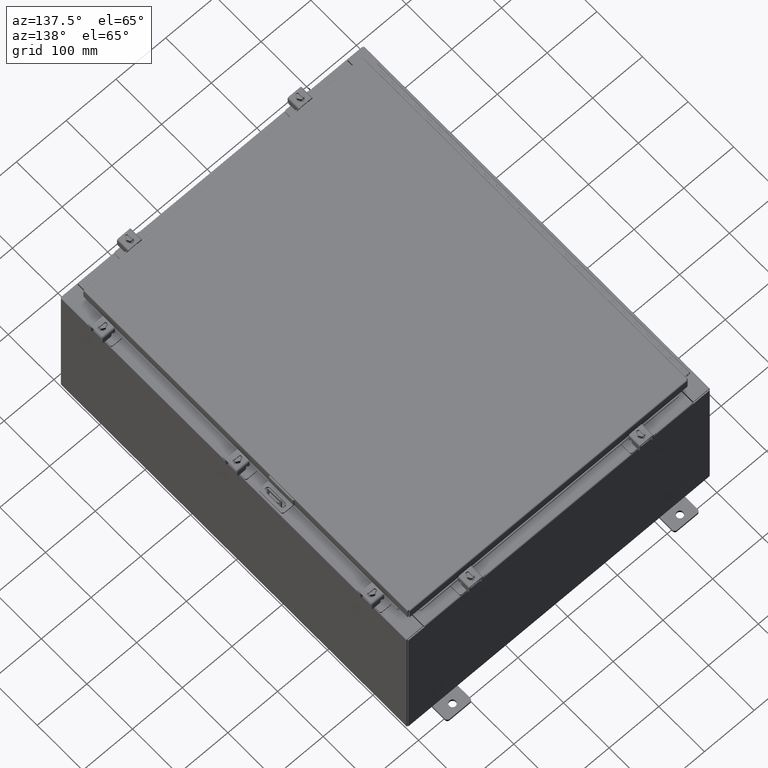
[diagram: clean part render]
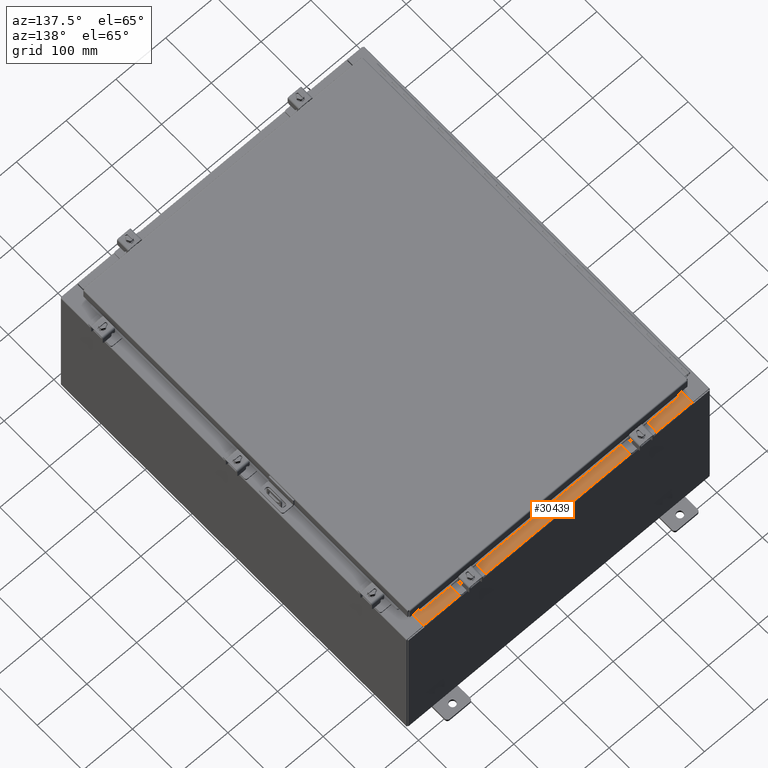
[diagram: same view with one face highlighted and labeled with its STEP entity id]
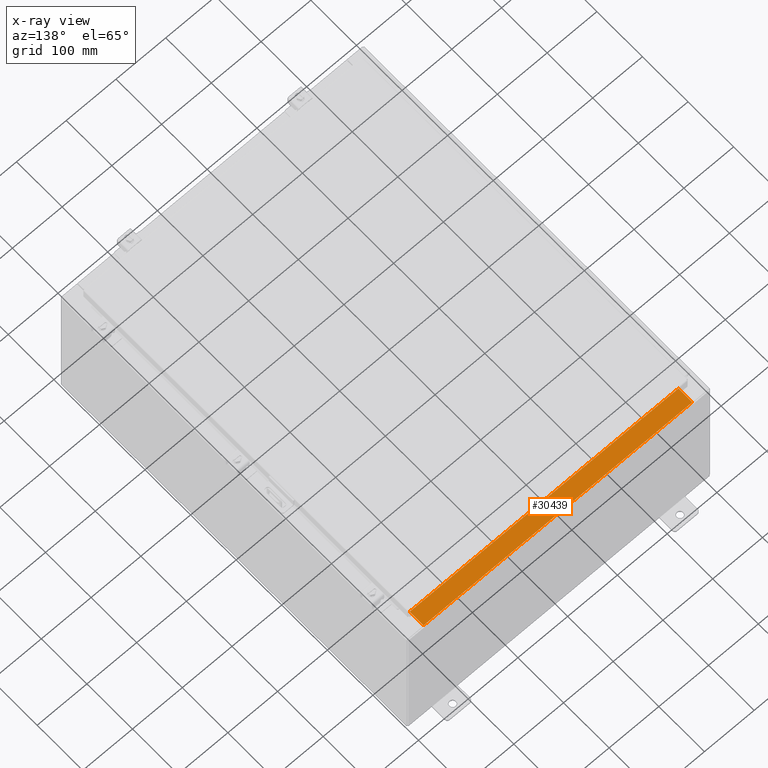
[diagram: x-ray of the same camera — body ghosted, the highlighted face saturated]
A machine part, auxiliary view. The second image highlights one B-rep face of the part: STEP entity #30439.
The next image is the same camera in x-ray: the body ghosted, the highlighted face saturated — about 0% of this face is hidden behind the body in this view.
In plain terms, the highlighted planar face has unit normal (0, 0, 1).
Its self-contained STEP definition (entity closure, byte-faithful):
#142 = DIRECTION ( 'NONE',  ( -1.000000000000000000, 0.0000000000000000000, 0.0000000000000000000 ) ) ;
#660 = VERTEX_POINT ( 'NONE', #7476 ) ;
#1501 = CARTESIAN_POINT ( 'NONE',  ( -10.63720000000000200, -1.287299999999998100, 6.000000000000004400 ) ) ;
#2535 = DIRECTION ( 'NONE',  ( 0.0000000000000000000, -1.000000000000000000, 2.674785894579892700E-015 ) ) ;
#2818 = FACE_OUTER_BOUND ( 'NONE', #27077, .T. ) ;
#3056 = LINE ( 'NONE', #20499, #32830 ) ;
#3272 = VERTEX_POINT ( 'NONE', #23281 ) ;
#3763 = ORIENTED_EDGE ( 'NONE', *, *, #10616, .F. ) ;
#6509 = ORIENTED_EDGE ( 'NONE', *, *, #33726, .F. ) ;
#7476 = CARTESIAN_POINT ( 'NONE',  ( 10.63720000000000400, -0.08770000000000002800, 6.000000000000001800 ) ) ;
#7951 = CARTESIAN_POINT ( 'NONE',  ( -3.422455537835030400E-018, -0.08770000000000026400, 6.000000000000001800 ) ) ;
#8700 = CARTESIAN_POINT ( 'NONE',  ( -10.63720000000000200, -0.08770000000000026400, 6.000000000000001800 ) ) ;
#10616 = EDGE_CURVE ( 'NONE', #24750, #13215, #35111, .T. ) ;
#11148 = AXIS2_PLACEMENT_3D ( 'NONE', #17035, #19905, #2535 ) ;
#11668 = CARTESIAN_POINT ( 'NONE',  ( -10.63720000000000200, -0.07469999999999973900, 6.000000000000001800 ) ) ;
#11719 = DIRECTION ( 'NONE',  ( -0.0000000000000000000, 1.000000000000000000, -2.674785894579892700E-015 ) ) ;
#13215 = VERTEX_POINT ( 'NONE', #8700 ) ;
#15231 = CARTESIAN_POINT ( 'NONE',  ( 10.63720000000000200, -1.300299999999999800, 6.000000000000006200 ) ) ;
#16814 = LINE ( 'NONE', #7951, #25306 ) ;
#17035 = CARTESIAN_POINT ( 'NONE',  ( -3.422455537835030400E-018, 1.610972251716582100E-014, 6.000000000000001800 ) ) ;
#18108 = DIRECTION ( 'NONE',  ( -0.0000000000000000000, -1.000000000000000000, 3.566381192773190000E-015 ) ) ;
#18957 = VECTOR ( 'NONE', #11719, 39.37007874015748100 ) ;
#19905 = DIRECTION ( 'NONE',  ( 0.0000000000000000000, 2.674785894579892700E-015, 1.000000000000000000 ) ) ;
#20499 = CARTESIAN_POINT ( 'NONE',  ( 10.63720000000000400, -1.287299999999998800, 6.000000000000003600 ) ) ;
#23281 = CARTESIAN_POINT ( 'NONE',  ( 10.63720000000000200, -1.287299999999998800, 6.000000000000006200 ) ) ;
#24750 = VERTEX_POINT ( 'NONE', #1501 ) ;
#25306 = VECTOR ( 'NONE', #28072, 39.37007874015748100 ) ;
#26225 = VECTOR ( 'NONE', #18108, 39.37007874015748100 ) ;
#27077 = EDGE_LOOP ( 'NONE', ( #3763, #6509, #33087, #34899 ) ) ;
#28072 = DIRECTION ( 'NONE',  ( -1.000000000000000000, 0.0000000000000000000, 0.0000000000000000000 ) ) ;
#28705 = EDGE_CURVE ( 'NONE', #660, #3272, #35657, .T. ) ;
#30439 = ADVANCED_FACE ( 'NONE', ( #2818 ), #34198, .T. ) ;
#31812 = EDGE_CURVE ( 'NONE', #660, #13215, #16814, .T. ) ;
#32830 = VECTOR ( 'NONE', #142, 39.37007874015748100 ) ;
#33087 = ORIENTED_EDGE ( 'NONE', *, *, #28705, .F. ) ;
#33726 = EDGE_CURVE ( 'NONE', #3272, #24750, #3056, .T. ) ;
#34198 = PLANE ( 'NONE',  #11148 ) ;
#34899 = ORIENTED_EDGE ( 'NONE', *, *, #31812, .T. ) ;
#35111 = LINE ( 'NONE', #11668, #18957 ) ;
#35657 = LINE ( 'NONE', #15231, #26225 ) ;